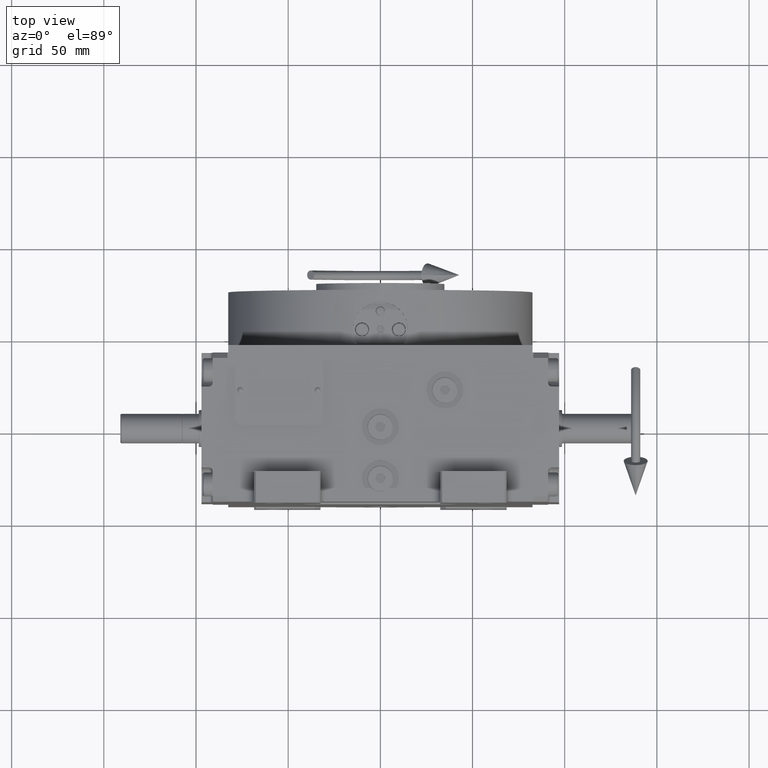
[diagram: clean part render]
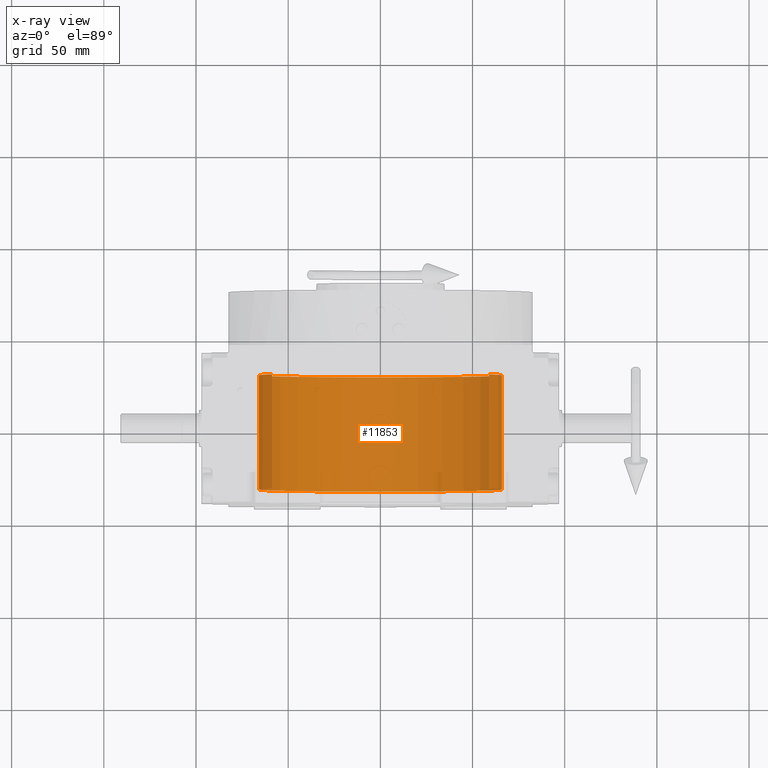
[diagram: x-ray — body ghosted, one internal face saturated and labeled with its STEP entity id]
A machine part, top view, then the same camera in x-ray: the body is ghosted and one INTERNAL B-rep face — a face not visible from any outside direction — is saturated and labeled: STEP entity #11853.
In plain terms, the highlighted cylindrical surface (partial cylindrical patch) has radius 66 mm, axis along (0, 1, 0).
Its self-contained STEP definition (entity closure, byte-faithful):
#1109 = VERTEX_POINT ( 'NONE', #5848 ) ;
#3594 = DIRECTION ( 'NONE',  ( 0.000000000000000000, 0.000000000000000000, 1.000000000000000000 ) ) ;
#5848 = CARTESIAN_POINT ( 'NONE',  ( 58.78775382679628336, -31.99999999999998579, 30.00000000000000000 ) ) ;
#10514 = DIRECTION ( 'NONE',  ( -0.000000000000000000, 1.000000000000000000, -0.000000000000000000 ) ) ;
#11619 = LINE ( 'NONE', #40737, #62059 ) ;
#11853 = ADVANCED_FACE ( 'NONE', ( #31732 ), #36899, .F. ) ;
#12324 = DIRECTION ( 'NONE',  ( -0.000000000000000000, 1.000000000000000000, -0.000000000000000000 ) ) ;
#14234 = VERTEX_POINT ( 'NONE', #52644 ) ;
#17831 = CARTESIAN_POINT ( 'NONE',  ( 0.000000000000000000, 30.00000000000001421, 0.000000000000000000 ) ) ;
#18471 = CARTESIAN_POINT ( 'NONE',  ( 0.000000000000000000, -31.99999999999998579, 0.000000000000000000 ) ) ;
#20294 = VERTEX_POINT ( 'NONE', #29416 ) ;
#22736 = AXIS2_PLACEMENT_3D ( 'NONE', #17831, #12324, #33015 ) ;
#23946 = EDGE_CURVE ( 'NONE', #1109, #20294, #45731, .T. ) ;
#24687 = ORIENTED_EDGE ( 'NONE', *, *, #38149, .T. ) ;
#27515 = CARTESIAN_POINT ( 'NONE',  ( 0.000000000000000000, 98.15000000000000568, 0.000000000000000000 ) ) ;
#28355 = EDGE_CURVE ( 'NONE', #58137, #14234, #11619, .T. ) ;
#29416 = CARTESIAN_POINT ( 'NONE',  ( 58.78775382679628336, 30.00000000000001421, 30.00000000000000000 ) ) ;
#29812 = VECTOR ( 'NONE', #10514, 1000.000000000000000 ) ;
#31007 = CIRCLE ( 'NONE', #47521, 66.00000000000000000 ) ;
#31732 = FACE_OUTER_BOUND ( 'NONE', #62134, .T. ) ;
#33015 = DIRECTION ( 'NONE',  ( 0.000000000000000000, 0.000000000000000000, 1.000000000000000000 ) ) ;
#36899 = CYLINDRICAL_SURFACE ( 'NONE', #62248, 66.00000000000000000 ) ;
#38149 = EDGE_CURVE ( 'NONE', #20294, #58137, #61963, .T. ) ;
#38173 = EDGE_CURVE ( 'NONE', #1109, #14234, #31007, .T. ) ;
#40737 = CARTESIAN_POINT ( 'NONE',  ( -58.78775382679628336, 98.15000000000000568, 30.00000000000000000 ) ) ;
#41110 = DIRECTION ( 'NONE',  ( 0.000000000000000000, 0.000000000000000000, 1.000000000000000000 ) ) ;
#43060 = CARTESIAN_POINT ( 'NONE',  ( -58.78775382679628336, 30.00000000000001421, 30.00000000000000000 ) ) ;
#45731 = LINE ( 'NONE', #49618, #29812 ) ;
#47521 = AXIS2_PLACEMENT_3D ( 'NONE', #18471, #51731, #3594 ) ;
#49618 = CARTESIAN_POINT ( 'NONE',  ( 58.78775382679628336, 98.15000000000000568, 30.00000000000000000 ) ) ;
#51731 = DIRECTION ( 'NONE',  ( -0.000000000000000000, 1.000000000000000000, -0.000000000000000000 ) ) ;
#52037 = DIRECTION ( 'NONE',  ( -0.000000000000000000, 1.000000000000000000, -0.000000000000000000 ) ) ;
#52644 = CARTESIAN_POINT ( 'NONE',  ( -58.78775382679628336, -31.99999999999998579, 30.00000000000000000 ) ) ;
#55169 = ORIENTED_EDGE ( 'NONE', *, *, #28355, .T. ) ;
#58133 = ORIENTED_EDGE ( 'NONE', *, *, #38173, .F. ) ;
#58137 = VERTEX_POINT ( 'NONE', #43060 ) ;
#59814 = DIRECTION ( 'NONE',  ( 0.000000000000000000, -1.000000000000000000, 0.000000000000000000 ) ) ;
#60605 = ORIENTED_EDGE ( 'NONE', *, *, #23946, .T. ) ;
#61963 = CIRCLE ( 'NONE', #22736, 66.00000000000000000 ) ;
#62059 = VECTOR ( 'NONE', #59814, 1000.000000000000000 ) ;
#62134 = EDGE_LOOP ( 'NONE', ( #55169, #58133, #60605, #24687 ) ) ;
#62248 = AXIS2_PLACEMENT_3D ( 'NONE', #27515, #52037, #41110 ) ;